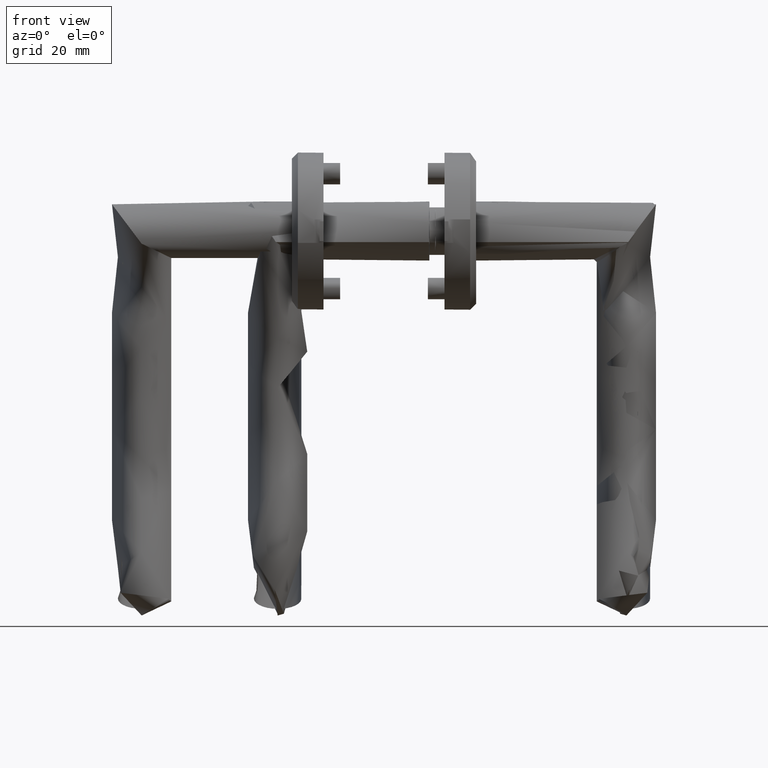
[diagram: clean part render]
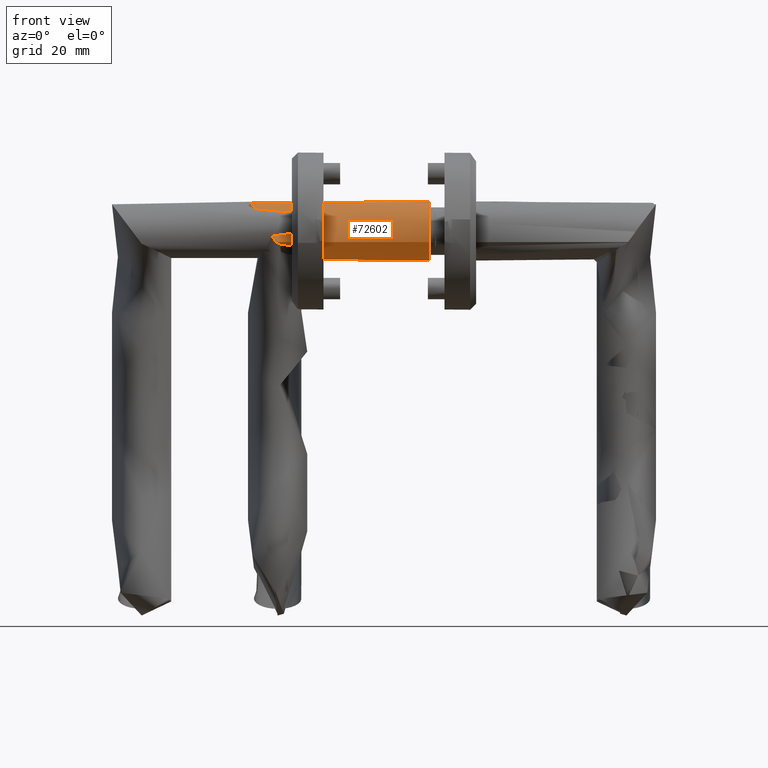
[diagram: same view with one face highlighted and labeled with its STEP entity id]
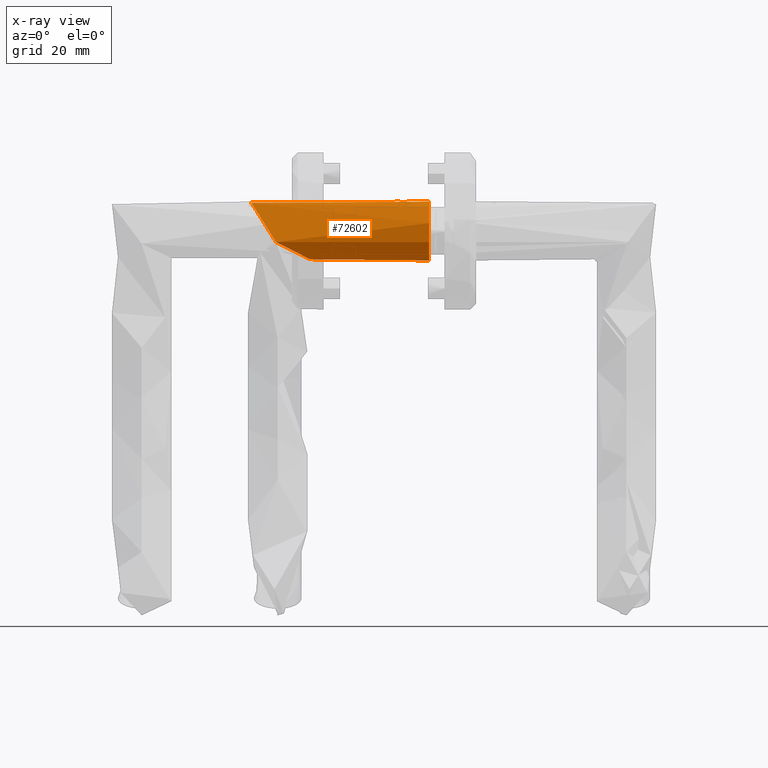
[diagram: x-ray of the same camera — body ghosted, the highlighted face saturated]
A machine part, front view. The second image highlights one B-rep face of the part: STEP entity #72602.
The next image is the same camera in x-ray: the body ghosted, the highlighted face saturated — about 0% of this face is hidden behind the body in this view.
In plain terms, the highlighted cylindrical surface (bore or boss wall) has radius 9.8 mm, axis along (1, -0, 0).
Its self-contained STEP definition (entity closure, byte-faithful):
#471 = CARTESIAN_POINT ( 'NONE',  ( -0.4061805765373935300, -2.792462112057311400, 6.765731229837316900 ) ) ;
#764 = CARTESIAN_POINT ( 'NONE',  ( -0.08423190990049159200, -1.336306402090265300, 5.015804386674228800 ) ) ;
#1060 = CARTESIAN_POINT ( 'NONE',  ( -0.4299245251973416400, -2.871127584138443800, 7.139626373646949600 ) ) ;
#1616 = CARTESIAN_POINT ( 'NONE',  ( -0.2618167643312822000, 2.253509607845992000, 9.546656374265712200 ) ) ;
#1624 = VERTEX_POINT ( 'NONE', #6346 ) ;
#1633 = CARTESIAN_POINT ( 'NONE',  ( -0.4018662223790615600, -2.777969092745477200, 8.283559750383528100 ) ) ;
#1768 = CARTESIAN_POINT ( 'NONE',  ( -4.869530685079763700, 8.490005304839032300, 50.79174297147507400 ) ) ;
#2260 = CARTESIAN_POINT ( 'NONE',  ( -17.85907985129309900, -5.603641820740178600, 44.69603978975837300 ) ) ;
#2615 = CARTESIAN_POINT ( 'NONE',  ( -6.894485779167245800, 9.360554790898309100, 48.79729121426018400 ) ) ;
#2909 = CARTESIAN_POINT ( 'NONE',  ( -0.1425555344582122900, 1.701806094877018800, 57.34058169367359900 ) ) ;
#3185 = CARTESIAN_POINT ( 'NONE',  ( -0.03082738459021106700, -0.8687259705340487600, 58.44383637626584300 ) ) ;
#3468 = CARTESIAN_POINT ( 'NONE',  ( -8.325822171229248200, -9.693911253812119700, 55.13253409871704500 ) ) ;
#3747 = CARTESIAN_POINT ( 'NONE',  ( -0.08610084027925260500, 1.346141097161249700, 57.52697888887779200 ) ) ;
#4026 = CARTESIAN_POINT ( 'NONE',  ( -1.572748619075737600, -5.339464290378865400, 58.93588838608160800 ) ) ;
#5078 = CARTESIAN_POINT ( 'NONE',  ( -16.28179985756913000, 7.358598628866057600, 40.38650054582460300 ) ) ;
#5377 = CARTESIAN_POINT ( 'NONE',  ( -8.257597841798277800, 9.678748225051252900, 47.43621451952699900 ) ) ;
#5672 = CARTESIAN_POINT ( 'NONE',  ( -7.743303045506881000, 9.582618802390712200, 47.99434149282559800 ) ) ;
#6244 = CARTESIAN_POINT ( 'NONE',  ( -7.617751968627468200, 9.553941256338701400, 48.13283780220578500 ) ) ;
#6346 = CARTESIAN_POINT ( 'NONE',  ( -0.3266068287380506400, 2.508948349944145000, 5.910635920466130100 ) ) ;
#8168 = CARTESIAN_POINT ( 'NONE',  ( -7.108232710321366300, 9.425154403972692700, 48.59787168576581700 ) ) ;
#8600 = CARTESIAN_POINT ( 'NONE',  ( 0.001380951274240218900, -0.04228891407465110200, 10.49666447781834000 ) ) ;
#8757 = CARTESIAN_POINT ( 'NONE',  ( -3.890374624243471600, 7.823462261947027800, 51.85516927975651700 ) ) ;
#8900 = CARTESIAN_POINT ( 'NONE',  ( -0.1299901964287825700, 1.597401643419191300, 10.07381598917114800 ) ) ;
#8974 = CARTESIAN_POINT ( 'NONE',  ( -18.43354358740340600, -4.645927106831687000, 43.67477950584062500 ) ) ;
#9324 = CYLINDRICAL_SURFACE ( 'NONE', #43286, 9.799999999999998900 ) ;
#9343 = CARTESIAN_POINT ( 'NONE',  ( -1.439229202252885600, 5.122509261629476300, 54.92839882363760800 ) ) ;
#9545 = CARTESIAN_POINT ( 'NONE',  ( -14.57987283916454200, -8.559064623941896600, 49.36260582068491900 ) ) ;
#9615 = CARTESIAN_POINT ( 'NONE',  ( -0.5214741638414096500, -3.179520347139460900, 58.94929632526124400 ) ) ;
#9835 = CARTESIAN_POINT ( 'NONE',  ( -16.83367041463699500, -6.844917033097451600, 46.30266599077740600 ) ) ;
#9909 = CARTESIAN_POINT ( 'NONE',  ( -5.788138864745248700, -8.947687749470645700, 56.90629781645873200 ) ) ;
#9995 = CIRCLE ( 'NONE', #66062, 9.799999999999998900 ) ;
#10189 = CARTESIAN_POINT ( 'NONE',  ( -5.473336110722332400, -8.800395967683927600, 57.10533154076080100 ) ) ;
#10747 = CARTESIAN_POINT ( 'NONE',  ( -10.50914743493592800, -9.793669204911909200, 53.39969866846517000 ) ) ;
#11817 = CARTESIAN_POINT ( 'NONE',  ( -11.32823205237275500, 9.695664575619236600, 44.34529821661419600 ) ) ;
#12125 = CARTESIAN_POINT ( 'NONE',  ( -16.02141681401117200, 7.579302782769098600, 40.55134492824155500 ) ) ;
#12194 = EDGE_LOOP ( 'NONE', ( #33802, #67891, #23625, #42827 ) ) ;
#13956 = CARTESIAN_POINT ( 'NONE',  ( -0.3176652649169956500, -2.477716980534005100, 6.063794080658747800 ) ) ;
#14256 = CARTESIAN_POINT ( 'NONE',  ( -0.4359767318478704500, -2.890514131951161100, 7.334150473976263700 ) ) ;
#14816 = CARTESIAN_POINT ( 'NONE',  ( -0.3367607074705541400, 2.548807222918287000, 9.132346594180054600 ) ) ;
#14965 = CARTESIAN_POINT ( 'NONE',  ( -6.195724396992180700, 9.117870410006030800, 49.46207720310561500 ) ) ;
#15131 = CARTESIAN_POINT ( 'NONE',  ( -0.1203585121140169800, 1.541543440713293500, 5.150462231148426700 ) ) ;
#15406 = CARTESIAN_POINT ( 'NONE',  ( -0.1056011626953473900, 1.443554184682897900, 10.15216787031091700 ) ) ;
#15787 = CARTESIAN_POINT ( 'NONE',  ( -18.81155323073129900, -3.862772969848649000, 42.93231607733211100 ) ) ;
#15854 = CARTESIAN_POINT ( 'NONE',  ( -3.422309747664063400, 7.446831600832260800, 52.38672239584742800 ) ) ;
#15989 = CARTESIAN_POINT ( 'NONE',  ( -0.06392008342944612000, 1.128700739346272900, 10.27828166660405000 ) ) ;
#16062 = CARTESIAN_POINT ( 'NONE',  ( -15.23658689555503500, -8.169615003699076900, 48.52236790239355500 ) ) ;
#16355 = CARTESIAN_POINT ( 'NONE',  ( -15.65539212080153000, -7.875451239255314200, 47.96508471185811800 ) ) ;
#16429 = CARTESIAN_POINT ( 'NONE',  ( -2.277206394349233300, -6.292749063239534200, 58.73337683732749100 ) ) ;
#16639 = CARTESIAN_POINT ( 'NONE',  ( -18.29592177232524400, -4.892515269745868700, 43.92735034596977100 ) ) ;
#16711 = CARTESIAN_POINT ( 'NONE',  ( -0.8118502699250622600, -3.926010157894416000, 59.00434490088243000 ) ) ;
#19203 = CARTESIAN_POINT ( 'NONE',  ( -16.79063701577880300, 6.877041317889233300, 40.08700684919096300 ) ) ;
#19333 = EDGE_CURVE ( 'NONE', #36669, #34229, #45303, .T. ) ;
#20752 = CARTESIAN_POINT ( 'NONE',  ( -0.02880257191383140200, -0.7740587294114443800, 4.825596788253325700 ) ) ;
#21044 = CARTESIAN_POINT ( 'NONE',  ( -0.2528294829218141200, -2.214986604112136900, 9.287676189871614700 ) ) ;
#21325 = CARTESIAN_POINT ( 'NONE',  ( -0.1358374785295694000, -1.626026678319339100, 9.985344491492835300 ) ) ;
#21606 = CARTESIAN_POINT ( 'NONE',  ( -0.08468057270797455000, -1.287883711185499000, 10.24688870521098500 ) ) ;
#21623 = CARTESIAN_POINT ( 'NONE',  ( -0.2067825825367113100, 2.008552627083749700, 5.500824813677661900 ) ) ;
#21920 = CARTESIAN_POINT ( 'NONE',  ( -0.1929373059344005000, -1.935031368449480000, 9.555893393824273800 ) ) ;
#22175 = CARTESIAN_POINT ( 'NONE',  ( -0.3447311947213098100, 2.576575046645809500, 5.962742131001777900 ) ) ;
#22547 = CARTESIAN_POINT ( 'NONE',  ( -19.49025647685769200, -1.497125524326851100, 41.15866408466092000 ) ) ;
#22623 = CARTESIAN_POINT ( 'NONE',  ( -3.195095913670098500, 7.246152176742352700, 52.65188345537837500 ) ) ;
#23049 = FACE_BOUND ( 'NONE', #12194, .T. ) ;
#23208 = CARTESIAN_POINT ( 'NONE',  ( -13.14803533672285800, -9.210661399881951500, 51.03899601591543700 ) ) ;
#23420 = CARTESIAN_POINT ( 'NONE',  ( -13.54593485576608800, -9.056715396193801800, 50.63135839814451300 ) ) ;
#23492 = CARTESIAN_POINT ( 'NONE',  ( -13.42798472969003900, -9.103720492256773200, 50.77151898276601100 ) ) ;
#23625 = ORIENTED_EDGE ( 'NONE', *, *, #82156, .F. ) ;
#23766 = CARTESIAN_POINT ( 'NONE',  ( -0.3984683595554084900, -2.794299150187719700, 58.89889749791861800 ) ) ;
#25384 = CARTESIAN_POINT ( 'NONE',  ( -10.23575146741145800, 9.805688421904191500, 45.39486470332492000 ) ) ;
#25433 = CARTESIAN_POINT ( 'NONE',  ( -0.1745433166667519100, -1.843708507061457600, 9.707522924673369900 ) ) ;
#25667 = DIRECTION ( 'NONE',  ( -1.000000000000000000, 0.0000000000000000000, 0.0000000000000000000 ) ) ;
#25681 = CARTESIAN_POINT ( 'NONE',  ( -17.73337762820565900, 5.765556636300492400, 39.63134279629942100 ) ) ;
#25758 = DIRECTION ( 'NONE',  ( 1.000000000000000000, 0.0000000000000000000, 0.0000000000000000000 ) ) ;
#25979 = CARTESIAN_POINT ( 'NONE',  ( -19.11197012739143400, 3.077520229152137100, 39.45072555031629200 ) ) ;
#26555 = CARTESIAN_POINT ( 'NONE',  ( -18.15007455823957400, 5.143576459035366500, 39.48947270577297500 ) ) ;
#27789 = CARTESIAN_POINT ( 'NONE',  ( -0.2665957340604106500, 2.270287853063045700, 5.787844893661185700 ) ) ;
#27799 = ORIENTED_EDGE ( 'NONE', *, *, #85218, .T. ) ;
#27929 = CARTESIAN_POINT ( 'NONE',  ( -0.1358374785295694000, -1.626026678319339100, 9.985344491492835300 ) ) ;
#28358 = CARTESIAN_POINT ( 'NONE',  ( -0.3588852134744608400, 2.628739804889498100, 8.982345530294740100 ) ) ;
#28505 = CARTESIAN_POINT ( 'NONE',  ( -1.608409494192065700, 5.388380008468503800, 54.68479748308838900 ) ) ;
#28947 = CARTESIAN_POINT ( 'NONE',  ( -0.04635156657311304700, 0.9664149552138073800, 10.32694627309008000 ) ) ;
#29676 = CARTESIAN_POINT ( 'NONE',  ( -7.325502677200184100, 9.482747742327577000, 48.39847248621829600 ) ) ;
#29964 = CARTESIAN_POINT ( 'NONE',  ( -0.1304632024768911400, -1.640572010885045700, 58.66548659239904900 ) ) ;
#30243 = CARTESIAN_POINT ( 'NONE',  ( -12.86470430688758500, -9.309678439459160500, 51.30622022838827700 ) ) ;
#30411 = DIRECTION ( 'NONE',  ( -0.0000000000000000000, -0.0000000000000000000, -1.000000000000000000 ) ) ;
#30491 = CARTESIAN_POINT ( 'NONE',  ( -0.1358374785295694000, -1.626026678319339100, 9.985344491492835300 ) ) ;
#30522 = EDGE_CURVE ( 'NONE', #36669, #1624, #57147, .T. ) ;
#30801 = CARTESIAN_POINT ( 'NONE',  ( -2.799284533487100800, -6.868849784574501300, 58.53230100718933200 ) ) ;
#31601 = CARTESIAN_POINT ( 'NONE',  ( -0.1552055753873479200, -1.741139448768254500, 9.850940852433691200 ) ) ;
#31817 = CARTESIAN_POINT ( 'NONE',  ( -0.2858233838726349500, 2.351027914050048700, 5.826839862643105900 ) ) ;
#31845 = CARTESIAN_POINT ( 'NONE',  ( -8.128421866163233000, 9.657269891524267200, 47.57523467436320900 ) ) ;
#32437 = CARTESIAN_POINT ( 'NONE',  ( -8.646613269687573900, 9.735419124853882200, 47.02103212588061600 ) ) ;
#32463 = CARTESIAN_POINT ( 'NONE',  ( -0.3365987195318255700, 2.546676153314767700, 5.931257264960094300 ) ) ;
#32728 = CARTESIAN_POINT ( 'NONE',  ( -11.88717308383404600, 9.592555769974014300, 43.82849681296784200 ) ) ;
#33031 = CARTESIAN_POINT ( 'NONE',  ( -12.99922163627515700, 9.281077448439486200, 42.84632315409149300 ) ) ;
#33656 = ORIENTED_EDGE ( 'NONE', *, *, #69413, .T. ) ;
#33802 = ORIENTED_EDGE ( 'NONE', *, *, #30522, .F. ) ;
#34229 = VERTEX_POINT ( 'NONE', #79352 ) ;
#34259 = CARTESIAN_POINT ( 'NONE',  ( -0.2610882620916402700, -2.250092513694122800, 5.753183791802528400 ) ) ;
#34547 = CARTESIAN_POINT ( 'NONE',  ( -0.3439696647595534800, -2.574913967052404800, 6.230355791713285500 ) ) ;
#34830 = CARTESIAN_POINT ( 'NONE',  ( -0.07067316582087650200, 1.188282318025384800, 4.968933437235312700 ) ) ;
#34957 = CARTESIAN_POINT ( 'NONE',  ( -2.145825268323128500, 6.151486462553760900, 53.94319573449819000 ) ) ;
#35248 = CARTESIAN_POINT ( 'NONE',  ( -4.130672729988269500, 7.999134812021395600, 51.58933895093904500 ) ) ;
#35401 = CARTESIAN_POINT ( 'NONE',  ( -0.03915500700827827900, -0.8914022991005908800, 10.41170253443760500 ) ) ;
#35688 = CARTESIAN_POINT ( 'NONE',  ( -0.4711808536839851000, 3.002558115010058900, 7.496146506846778300 ) ) ;
#35982 = CARTESIAN_POINT ( 'NONE',  ( -0.4441873624632208800, 2.917153011823020200, 6.644086616331344800 ) ) ;
#36049 = CARTESIAN_POINT ( 'NONE',  ( -19.59305999910304800, -0.4996216323035274600, 40.59708888578620600 ) ) ;
#36411 = CARTESIAN_POINT ( 'NONE',  ( -13.35940297602940100, -9.131051467018990000, 50.83747076682803400 ) ) ;
#36613 = CARTESIAN_POINT ( 'NONE',  ( -13.42798472969003900, -9.103720492256773200, 50.77151898276601100 ) ) ;
#36669 = VERTEX_POINT ( 'NONE', #41158 ) ;
#36689 = CARTESIAN_POINT ( 'NONE',  ( 0.003745714287494941700, 0.2563939450103418500, 58.02966395633325900 ) ) ;
#36969 = CARTESIAN_POINT ( 'NONE',  ( -0.3614394472041410100, 2.728201797803554200, 56.75662853524013200 ) ) ;
#37532 = CARTESIAN_POINT ( 'NONE',  ( -1.358815589964623900, -4.994686523730136300, 58.97574683414024600 ) ) ;
#38754 = FACE_OUTER_BOUND ( 'NONE', #45735, .T. ) ;
#38878 = CARTESIAN_POINT ( 'NONE',  ( -19.22506774966682000, 2.711044106743476100, 39.50286483404062900 ) ) ;
#39109 = EDGE_CURVE ( 'NONE', #77653, #42003, #54957, .T. ) ;
#40702 = CARTESIAN_POINT ( 'NONE',  ( -0.1414116546402870700, -1.684815344113776100, 5.219091120732751500 ) ) ;
#41158 = CARTESIAN_POINT ( 'NONE',  ( -0.2665957340604106500, 2.270287853063045700, 5.787844893661185700 ) ) ;
#41272 = CARTESIAN_POINT ( 'NONE',  ( -0.1479724235551085100, 1.703663035354527200, 5.255793271890024900 ) ) ;
#41550 = CARTESIAN_POINT ( 'NONE',  ( -0.3872674020629939800, 2.728156726623715700, 6.167938402593973600 ) ) ;
#41697 = CARTESIAN_POINT ( 'NONE',  ( -0.9745169616923170500, 4.273135351920567300, 55.64453529643093100 ) ) ;
#41835 = CARTESIAN_POINT ( 'NONE',  ( -0.4427291502075023100, 2.912679890119854100, 8.178578437446731200 ) ) ;
#42003 = VERTEX_POINT ( 'NONE', #66094 ) ;
#42407 = CARTESIAN_POINT ( 'NONE',  ( -0.4728882535578570200, 3.008161179475770600, 7.154184822014570100 ) ) ;
#42480 = CARTESIAN_POINT ( 'NONE',  ( -17.53606488038626700, -6.039760662326071600, 45.22305088003423600 ) ) ;
#42712 = CARTESIAN_POINT ( 'NONE',  ( 0.0000000000000000000, 0.0000000000000000000, 0.1000000000000028600 ) ) ;
#42827 = ORIENTED_EDGE ( 'NONE', *, *, #53786, .F. ) ;
#43286 = AXIS2_PLACEMENT_3D ( 'NONE', #70545, #30411, #25667 ) ;
#43405 = CARTESIAN_POINT ( 'NONE',  ( -9.585931897118060300, -9.802493891467493700, 54.15177943446076400 ) ) ;
#43687 = CARTESIAN_POINT ( 'NONE',  ( -3.077269468982078300, -7.140535603438748600, 58.41153415409527100 ) ) ;
#45270 = CARTESIAN_POINT ( 'NONE',  ( -0.2665957340604106500, 2.270287853063045700, 5.787844893661185700 ) ) ;
#45300 = CARTESIAN_POINT ( 'NONE',  ( -18.84619342793116600, 3.788179362005699600, 39.39728201393845100 ) ) ;
#45303 = B_SPLINE_CURVE_WITH_KNOTS ( 'NONE', 3,
 ( #27789, #68522, #21623, #41272, #15131, #34830, #55320, #74687, #54458, #80841, #74978, #55031, #20752, #764, #40702, #61798, #34259, #13956, #34547, #47702, #471, #1060, #14256, #67667, #62085, #1633, #47989, #61219, #81410, #21044, #47401, #21920 ),
 .UNSPECIFIED., .F., .F.,
 ( 4, 2, 2, 2, 2, 2, 2, 2, 2, 2, 2, 2, 2, 2, 2, 4 ),
 ( 0.3560024989036351700, 0.3889505185700696800, 0.4218985382365042500, 0.4548465579029387600, 0.4877945775693732800, 0.5207425972358078500, 0.5536906169022424200, 0.6195866562351113300, 0.6525346759015460100, 0.6854826955679804700, 0.7184307152344151500, 0.7513787349008497200, 0.7843267545672842900, 0.8172747742337189700, 0.8502227939001534300, 0.8831708135665881100 ),
 .UNSPECIFIED. ) ;
#45374 = CARTESIAN_POINT ( 'NONE',  ( -9.799999999999998900, 0.0000000000000000000, 0.1000000000000028600 ) ) ;
#45588 = CARTESIAN_POINT ( 'NONE',  ( -14.38881452601117600, 8.664787726738916600, 41.71781658771480700 ) ) ;
#45735 = EDGE_LOOP ( 'NONE', ( #27799 ) ) ;
#46475 = CARTESIAN_POINT ( 'NONE',  ( -15.49021483022566600, 7.985819496609742900, 40.90716984907840700 ) ) ;
#47401 = CARTESIAN_POINT ( 'NONE',  ( -0.2225207863580461500, -2.081907668250725600, 9.428896543769294400 ) ) ;
#47702 = CARTESIAN_POINT ( 'NONE',  ( -0.3882708651872572900, -2.732406692208553300, 6.581261596423515500 ) ) ;
#47989 = CARTESIAN_POINT ( 'NONE',  ( -0.3829187721811693800, -2.713994624377130900, 8.467384209908400900 ) ) ;
#48543 = CARTESIAN_POINT ( 'NONE',  ( -0.1811596632402307500, 1.881141192862725700, 9.890499956474231500 ) ) ;
#49309 = CARTESIAN_POINT ( 'NONE',  ( -19.56620961832630500, 0.8907547041553582900, 39.98777894249615600 ) ) ;
#49421 = CARTESIAN_POINT ( 'NONE',  ( -0.4167864816273238500, 2.831075690488488000, 8.509154371003525300 ) ) ;
#49569 = CARTESIAN_POINT ( 'NONE',  ( -2.543680294245449900, 6.614509941059860200, 53.43448855947440300 ) ) ;
#49853 = CARTESIAN_POINT ( 'NONE',  ( -0.01310333882767723700, 0.6233670525653211000, 57.87142090348862700 ) ) ;
#50061 = CARTESIAN_POINT ( 'NONE',  ( -14.01349273249407200, -8.848880696767020400, 50.06569025379302900 ) ) ;
#50137 = CARTESIAN_POINT ( 'NONE',  ( -2.031504697475259700, -5.987322016377798500, 58.81460276602571500 ) ) ;
#50410 = CARTESIAN_POINT ( 'NONE',  ( -12.72162562869311300, -9.355573675756677000, 51.43961284877098400 ) ) ;
#50638 = EDGE_LOOP ( 'NONE', ( #72972, #33656 ) ) ;
#50683 = CARTESIAN_POINT ( 'NONE',  ( -13.28860245839649500, -9.158344660826552200, 50.90521322820730900 ) ) ;
#50969 = CARTESIAN_POINT ( 'NONE',  ( -0.005133821257954452300, -0.4896574578045241300, 58.31585945556775400 ) ) ;
#52032 = CARTESIAN_POINT ( 'NONE',  ( -19.40523903273490100, 1.980162962623089900, 39.65334474794952500 ) ) ;
#52327 = CARTESIAN_POINT ( 'NONE',  ( -15.21938707246005500, 8.171601924653158400, 41.09817325440221200 ) ) ;
#53041 = CARTESIAN_POINT ( 'NONE',  ( -19.60488934049203300, -0.1581570951382033100, 40.42864472453452900 ) ) ;
#53786 = EDGE_CURVE ( 'NONE', #1624, #80057, #82996, .T. ) ;
#54458 = CARTESIAN_POINT ( 'NONE',  ( -0.006977721092092065800, 0.4202449011684654100, 4.753881847997948100 ) ) ;
#54957 = B_SPLINE_CURVE_WITH_KNOTS ( 'NONE', 3,
 ( #82999, #55158, #75978, #29676, #8168, #2615, #82410, #14965, #68649, #1768, #35248, #8757, #15854, #22623, #49569, #34957, #28505, #9343, #81826, #41697, #83854, #36969, #2909, #3747, #49853, #36689, #50969, #3185, #29964, #56617, #23766, #9615, #16711, #77404, #37532, #4026, #50137, #16429, #30801, #43687, #71227, #63387, #70938, #57179, #10189, #9909, #77680, #63675, #3468, #83576, #57736, #43405, #10747, #84415, #77128, #70658, #50410, #30243, #56901, #23208, #50683, #36411, #23492 ),
 .UNSPECIFIED., .F., .F.,
 ( 4, 2, 1, 2, 2, 2, 2, 2, 2, 2, 2, 2, 2, 2, 2, 2, 2, 2, 2, 2, 2, 2, 2, 2, 2, 2, 2, 2, 2, 2, 2, 4 ),
 ( -1.995582135196429400E-005, 0.0002770301475496964100, 0.0005740161164513571300, 0.001167988054254664100, 0.002355931929861279500, 0.004731819681074524000, 0.005919763556681141900, 0.007107707432287758100, 0.009483595183500977500, 0.01067153905910757900, 0.01185948293471418200, 0.01423537068592738800, 0.01542331456153399300, 0.01661125843714060200, 0.01779920231274720700, 0.01898714618835381500, 0.02017509006396042700, 0.02136303393956702800, 0.02255097781517363300, 0.02373892169078024200, 0.02492686556638684700, 0.02611480944199344800, 0.02730275331760005300, 0.02849069719320666100, 0.03086658494441986400, 0.03205452882002645500, 0.03324247269563305300, 0.03561836044684624200, 0.03680630432245283300, 0.03740027626025613200, 0.03769726222915777800, 0.03799424819805942400 ),
 .UNSPECIFIED. ) ;
#55018 = CARTESIAN_POINT ( 'NONE',  ( -0.2080692784800457200, 2.012488515099567300, 9.785371971851677800 ) ) ;
#55031 = CARTESIAN_POINT ( 'NONE',  ( -0.01499435641125919700, -0.5773734369791063700, 4.780184611515381700 ) ) ;
#55158 = CARTESIAN_POINT ( 'NONE',  ( -7.545307705655039500, 9.537394017244997400, 48.19824494887705400 ) ) ;
#55320 = CARTESIAN_POINT ( 'NONE',  ( -0.04954540733420810500, 1.002786874066334400, 4.896283911125529200 ) ) ;
#55605 = CARTESIAN_POINT ( 'NONE',  ( -0.2883948702565840600, 2.361923797058738600, 9.413687064250225900 ) ) ;
#55882 = CARTESIAN_POINT ( 'NONE',  ( -0.1155786529497174900, -1.502335576334224500, 10.10635881301498500 ) ) ;
#56174 = CARTESIAN_POINT ( 'NONE',  ( -0.09485132812935664900, -1.362027264048037100, 10.20436617303294300 ) ) ;
#56539 = CARTESIAN_POINT ( 'NONE',  ( -14.35619317547277200, -8.680204267029699500, 49.64340796880340200 ) ) ;
#56617 = CARTESIAN_POINT ( 'NONE',  ( -0.2036171050095908200, -2.026410683883224100, 58.75707865447142100 ) ) ;
#56901 = CARTESIAN_POINT ( 'NONE',  ( -13.07743819302740600, -9.236018090853969300, 51.10583866492653700 ) ) ;
#57147 = B_SPLINE_CURVE_WITH_KNOTS ( 'NONE', 3,
 ( #45270, #31817, #65239, #58179 ),
 .UNSPECIFIED., .F., .F.,
 ( 4, 4 ),
 ( 0.0008556266802466830500, 0.001130209657857150100 ),
 .UNSPECIFIED. ) ;
#57179 = CARTESIAN_POINT ( 'NONE',  ( -4.845592992287839400, -8.462909712429850000, 57.48530607577188800 ) ) ;
#57736 = CARTESIAN_POINT ( 'NONE',  ( -9.274879718918688500, -9.791015266511262600, 54.39969662581759700 ) ) ;
#58179 = CARTESIAN_POINT ( 'NONE',  ( -0.3266068287380506400, 2.508948349944145000, 5.910635920466130100 ) ) ;
#59090 = CARTESIAN_POINT ( 'NONE',  ( -9.699395783089661500, 9.813729601892353200, 45.92997870149722700 ) ) ;
#59401 = CARTESIAN_POINT ( 'NONE',  ( -17.51100355188397000, 6.059109873106526000, 39.72457866856292000 ) ) ;
#61219 = CARTESIAN_POINT ( 'NONE',  ( -0.3373801525933006800, -2.550688396482525100, 8.813663754792637300 ) ) ;
#61336 = VERTEX_POINT ( 'NONE', #42712 ) ;
#61781 = CARTESIAN_POINT ( 'NONE',  ( -0.01919338646304344400, 0.6351673930102229600, 10.40565578243944400 ) ) ;
#61798 = CARTESIAN_POINT ( 'NONE',  ( -0.2304786090240848200, -2.118016345516317200, 5.607578712102455400 ) ) ;
#62065 = CARTESIAN_POINT ( 'NONE',  ( -0.3602026486498840500, 2.632693129955996800, 6.027083652073507400 ) ) ;
#62085 = CARTESIAN_POINT ( 'NONE',  ( -0.4278114833675705800, -2.864282316918491700, 7.908041964836021600 ) ) ;
#62363 = CARTESIAN_POINT ( 'NONE',  ( -0.009605901700550664400, 0.4656750425355212200, 10.43706278474029300 ) ) ;
#62740 = CARTESIAN_POINT ( 'NONE',  ( -19.13914576672388200, -3.029320540231940800, 42.21773086700668600 ) ) ;
#63310 = CARTESIAN_POINT ( 'NONE',  ( -16.45302851196022300, -7.214260927446206400, 46.85668215235928400 ) ) ;
#63387 = CARTESIAN_POINT ( 'NONE',  ( -3.938718995059273800, -7.862441443424971900, 57.99052057817260700 ) ) ;
#63603 = CARTESIAN_POINT ( 'NONE',  ( -18.69113776149577800, -4.131631985510289000, 43.17775142243650100 ) ) ;
#63675 = CARTESIAN_POINT ( 'NONE',  ( -7.369592096239204100, -9.515964485633349000, 55.84040616798434100 ) ) ;
#63875 = CARTESIAN_POINT ( 'NONE',  ( -13.66478189694546700, -9.006650603608081300, 50.48887468988630200 ) ) ;
#65239 = CARTESIAN_POINT ( 'NONE',  ( -0.3058477286639249600, 2.430565262906622300, 5.867793122955898600 ) ) ;
#65342 = DIRECTION ( 'NONE',  ( 0.0000000000000000000, 0.0000000000000000000, 1.000000000000000000 ) ) ;
#66062 = AXIS2_PLACEMENT_3D ( 'NONE', #45374, #65342, #25758 ) ;
#66094 = CARTESIAN_POINT ( 'NONE',  ( -13.42798472969003900, -9.103720492256773200, 50.77151898276601100 ) ) ;
#66742 = CARTESIAN_POINT ( 'NONE',  ( -19.47331189667806200, 1.612244150757180300, 39.75227147589288300 ) ) ;
#67667 = CARTESIAN_POINT ( 'NONE',  ( -0.4348406903473349100, -2.886831276387638000, 7.717390697516143500 ) ) ;
#67891 = ORIENTED_EDGE ( 'NONE', *, *, #19333, .T. ) ;
#68507 = CARTESIAN_POINT ( 'NONE',  ( -0.4296555286579132300, 2.870844139457214600, 6.479693829996105800 ) ) ;
#68522 = CARTESIAN_POINT ( 'NONE',  ( -0.2374544721599928200, 2.147916856194309600, 5.638785070973862700 ) ) ;
#68649 = CARTESIAN_POINT ( 'NONE',  ( -5.385912180460173300, 8.769337629820949300, 50.25987109393002300 ) ) ;
#68791 = CARTESIAN_POINT ( 'NONE',  ( -0.1263517706521573900, -1.569649114677483400, 10.05116993974830900 ) ) ;
#68963 = CARTESIAN_POINT ( 'NONE',  ( -19.59144834060528200, 0.5370363482065150200, 40.12400361044445400 ) ) ;
#69085 = CARTESIAN_POINT ( 'NONE',  ( -0.3990183993921502200, 2.768179969072868600, 6.244682419133410700 ) ) ;
#69413 = EDGE_CURVE ( 'NONE', #42003, #77653, #79097, .T. ) ;
#69451 = CARTESIAN_POINT ( 'NONE',  ( -19.53557803036346700, -1.171395038491324300, 40.96331582722336200 ) ) ;
#70016 = CARTESIAN_POINT ( 'NONE',  ( -13.89806107909072200, -8.902931517116876100, 50.20663108066404600 ) ) ;
#70308 = CARTESIAN_POINT ( 'NONE',  ( -19.31273629619016000, -2.440833843308339600, 41.77159744832632500 ) ) ;
#70545 = CARTESIAN_POINT ( 'NONE',  ( -9.799999999999998900, 0.0000000000000000000, 77.92093876368913600 ) ) ;
#70658 = CARTESIAN_POINT ( 'NONE',  ( -12.28858926197964900, -9.483540686481546800, 51.83920107326465400 ) ) ;
#70938 = CARTESIAN_POINT ( 'NONE',  ( -4.538373462026338100, -8.275740851733868200, 57.66276421564241900 ) ) ;
#71227 = CARTESIAN_POINT ( 'NONE',  ( -3.646175345929108000, -7.636281596667726200, 58.14089604366809300 ) ) ;
#71542 = B_SPLINE_CURVE_WITH_KNOTS ( 'NONE', 3,
 ( #27929, #31601, #25433, #78500 ),
 .UNSPECIFIED., .F., .F.,
 ( 4, 4 ),
 ( 0.0000000000000000000, 0.0005321329516538065900 ),
 .UNSPECIFIED. ) ;
#72585 = CARTESIAN_POINT ( 'NONE',  ( -13.55508216565371000, 9.073170247684823100, 42.37797561710480900 ) ) ;
#72602 = ADVANCED_FACE ( 'NONE', ( #38754, #78618, #23049 ), #9324, .T. ) ;
#72611 = CARTESIAN_POINT ( 'NONE',  ( -0.3266068287380506400, 2.508948349944145000, 5.910635920466130100 ) ) ;
#72889 = CARTESIAN_POINT ( 'NONE',  ( -14.66819604864763300, 8.511492318511127300, 41.50381235991634600 ) ) ;
#72972 = ORIENTED_EDGE ( 'NONE', *, *, #39109, .T. ) ;
#73187 = CARTESIAN_POINT ( 'NONE',  ( -7.871824167378775000, 9.609327404858143900, 47.85368328790607300 ) ) ;
#74687 = CARTESIAN_POINT ( 'NONE',  ( -0.01772288749434115400, 0.6196779587698059100, 4.788832964452297800 ) ) ;
#74978 = CARTESIAN_POINT ( 'NONE',  ( 0.0003869538198963505700, -0.1791956645383657700, 4.729778805697200100 ) ) ;
#75257 = CARTESIAN_POINT ( 'NONE',  ( -0.05579498174155830100, -1.055827956422429500, 10.35908179207021200 ) ) ;
#75828 = CARTESIAN_POINT ( 'NONE',  ( -0.01417952829103618500, -0.5535437936921843200, 10.48017037244678900 ) ) ;
#75978 = CARTESIAN_POINT ( 'NONE',  ( -7.471144822480630900, 9.519562768704426900, 48.26554500852412100 ) ) ;
#76120 = CARTESIAN_POINT ( 'NONE',  ( 0.0006373989321032108700, 0.1271865555415569400, 10.48317577926423800 ) ) ;
#77128 = CARTESIAN_POINT ( 'NONE',  ( -11.99652108734196600, -9.555403620597283900, 52.10325151206162500 ) ) ;
#77404 = CARTESIAN_POINT ( 'NONE',  ( -0.9793105941366211400, -4.289047227513970400, 59.00962315087756600 ) ) ;
#77653 = VERTEX_POINT ( 'NONE', #82860 ) ;
#77680 = CARTESIAN_POINT ( 'NONE',  ( -6.735034956623972700, -9.333304484761082900, 56.28553800021155200 ) ) ;
#78500 = CARTESIAN_POINT ( 'NONE',  ( -0.1929373059344005000, -1.935031368449480000, 9.555893393824273800 ) ) ;
#78618 = FACE_OUTER_BOUND ( 'NONE', #50638, .T. ) ;
#78744 = CARTESIAN_POINT ( 'NONE',  ( -17.04047118051967000, 6.614224468190371000, 39.95184284729002400 ) ) ;
#79018 = CARTESIAN_POINT ( 'NONE',  ( -18.69301374784851400, 4.135092398336104800, 39.39524788182168200 ) ) ;
#79097 = B_SPLINE_CURVE_WITH_KNOTS ( 'NONE', 3,
 ( #36613, #23420, #63875, #70016, #50061, #56539, #9545, #16062, #16355, #63310, #9835, #42480, #2260, #16639, #8974, #63603, #15787, #62740, #70308, #22547, #69451, #36049, #53041, #68963, #49309, #66742, #52032, #38878, #25979, #45300, #79018, #85783, #26555, #25681, #59401, #78744, #19203, #5078, #12125, #46475, #52327, #72889, #45588, #72585, #33031, #32728, #11817, #25384, #59090, #79897, #32437, #5377, #31845, #73187, #5672, #6244 ),
 .UNSPECIFIED., .F., .F.,
 ( 4, 2, 2, 2, 2, 2, 2, 2, 2, 2, 2, 2, 2, 2, 2, 2, 2, 2, 2, 2, 2, 2, 2, 2, 2, 2, 2, 4 ),
 ( -2.066882676151363000E-005, 0.0005466936978024167700, 0.001114056222366347100, 0.002248781271494218600, 0.004518231369749947800, 0.006787681468005673500, 0.009057131566261401900, 0.01019185661538926500, 0.01132658166451712600, 0.01359603176277285300, 0.01473075681190072300, 0.01586548186102858900, 0.01700020691015645700, 0.01813493195928432900, 0.01926965700841219400, 0.02040438205754006500, 0.02153910710666793300, 0.02267383215579580100, 0.02380855720492367300, 0.02494328225405154100, 0.02607800730317940900, 0.02721273235230727400, 0.02948218245056301300, 0.03175163254881874900, 0.03402108264707448500, 0.03515580769620236400, 0.03572317022076630700, 0.03629053274533024200 ),
 .UNSPECIFIED. ) ;
#79352 = CARTESIAN_POINT ( 'NONE',  ( -0.1929373059344005000, -1.935031368449480000, 9.555893393824273800 ) ) ;
#79897 = CARTESIAN_POINT ( 'NONE',  ( -8.908137434409729500, 9.762911125324162500, 46.74652213294125100 ) ) ;
#80057 = VERTEX_POINT ( 'NONE', #30491 ) ;
#80841 = CARTESIAN_POINT ( 'NONE',  ( 0.002012788539026378400, 0.02089079850335679900, 4.724564589362536500 ) ) ;
#81410 = CARTESIAN_POINT ( 'NONE',  ( -0.3104065681799215700, -2.449948374419428400, 8.979468558799549500 ) ) ;
#81678 = CARTESIAN_POINT ( 'NONE',  ( -0.3672707475661398700, 2.657858606397371900, 6.061353973514190600 ) ) ;
#81826 = CARTESIAN_POINT ( 'NONE',  ( -1.122588745628152000, 4.565645999247145400, 55.40771751123273200 ) ) ;
#82156 = EDGE_CURVE ( 'NONE', #80057, #34229, #71542, .T. ) ;
#82410 = CARTESIAN_POINT ( 'NONE',  ( -6.471571300602247100, 9.222231721037371000, 49.19614840222425300 ) ) ;
#82851 = CARTESIAN_POINT ( 'NONE',  ( -0.005972905203913346900, -0.3819557181863756400, 10.49530212416142500 ) ) ;
#82860 = CARTESIAN_POINT ( 'NONE',  ( -7.617751968627468200, 9.553941256338701400, 48.13283780220578500 ) ) ;
#82996 = B_SPLINE_CURVE_WITH_KNOTS ( 'NONE', 3,
 ( #72611, #32463, #22175, #62065, #81678, #41550, #69085, #68507, #35982, #42407, #35688, #41835, #49421, #28358, #14816, #55605, #1616, #55018, #48543, #8900, #15406, #15989, #28947, #61781, #62363, #76120, #8600, #82851, #75828, #35401, #75257, #21606, #56174, #55882, #68791, #21325 ),
 .UNSPECIFIED., .F., .F.,
 ( 4, 2, 2, 2, 2, 2, 2, 2, 2, 2, 2, 2, 2, 2, 2, 2, 2, 4 ),
 ( 0.0000000000000000000, 0.0001302873494216073000, 0.0002605746988432146000, 0.0005211493976864312500, 0.001042298795372862900, 0.002084597590745725900, 0.003126896386118588600, 0.003648045783805020000, 0.004169195181491451700, 0.004690344579177883500, 0.005211493976864315300, 0.005732643374550748000, 0.006253792772237178900, 0.006774942169923610700, 0.007296091567610042500, 0.007817240965296476000, 0.008077815664139691500, 0.008338390362982907000 ),
 .UNSPECIFIED. ) ;
#82999 = CARTESIAN_POINT ( 'NONE',  ( -7.617751968627468200, 9.553941256338701400, 48.13283780220578500 ) ) ;
#83576 = CARTESIAN_POINT ( 'NONE',  ( -8.645597729283025500, -9.736893069969653400, 54.88951137858930500 ) ) ;
#83854 = CARTESIAN_POINT ( 'NONE',  ( -0.5734275340099335100, 3.368338894914478600, 56.33034004497145700 ) ) ;
#84415 = CARTESIAN_POINT ( 'NONE',  ( -11.11145372485544400, -9.730460527961115600, 52.88727704416916700 ) ) ;
#85218 = EDGE_CURVE ( 'NONE', #61336, #61336, #9995, .T. ) ;
#85783 = CARTESIAN_POINT ( 'NONE',  ( -18.34574819629645100, 4.811950792318614700, 39.44092000000299700 ) ) ;